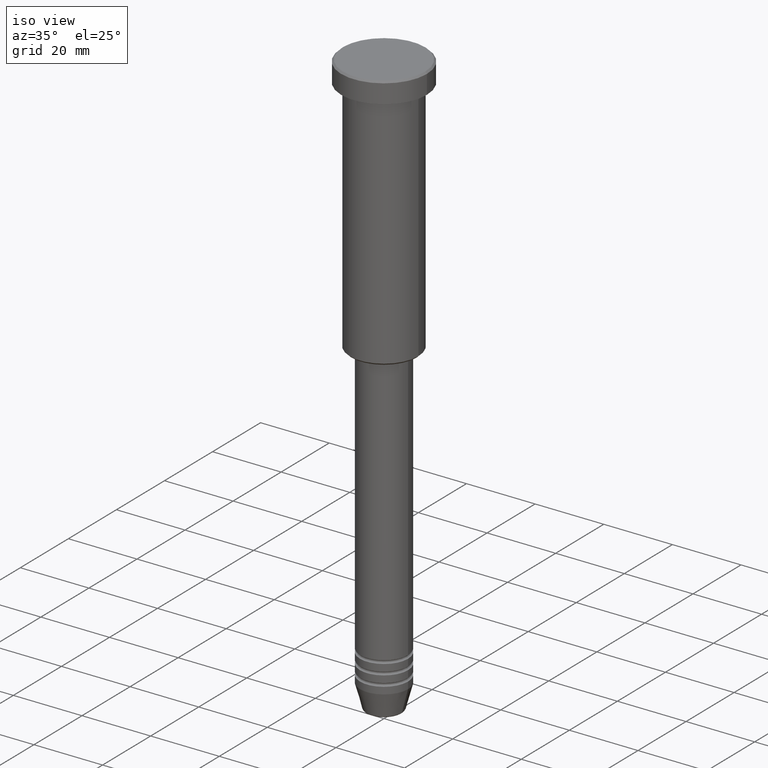
[diagram: clean part render]
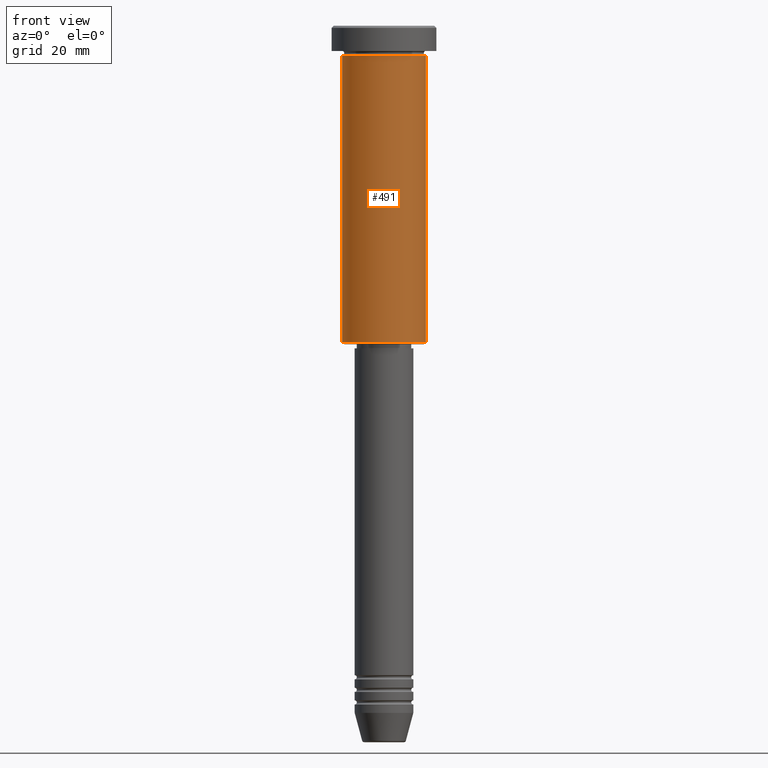
[diagram: tour spotlight — one face highlighted and labeled with its STEP entity id]
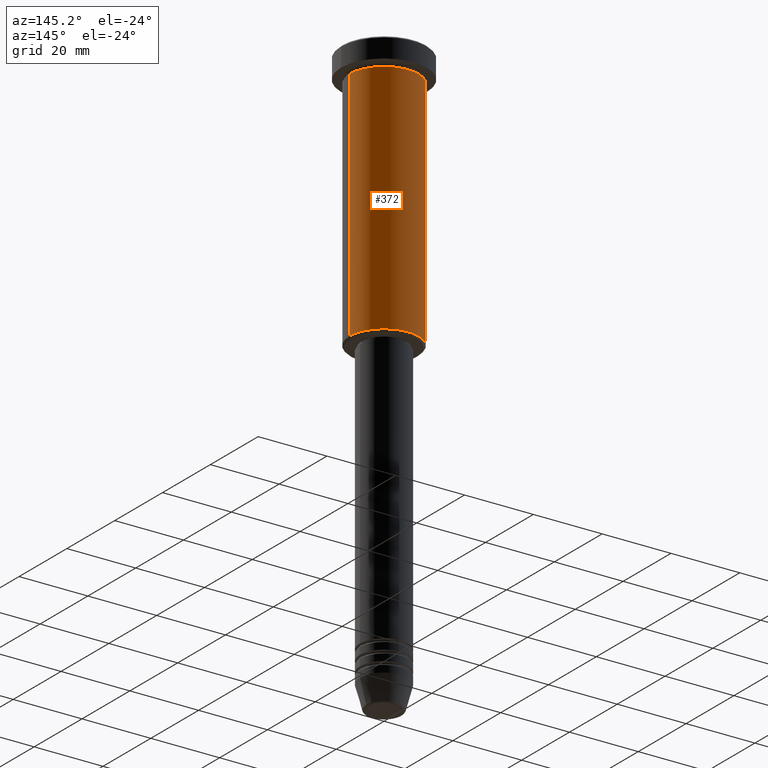
[diagram: tour spotlight — one face highlighted and labeled with its STEP entity id]
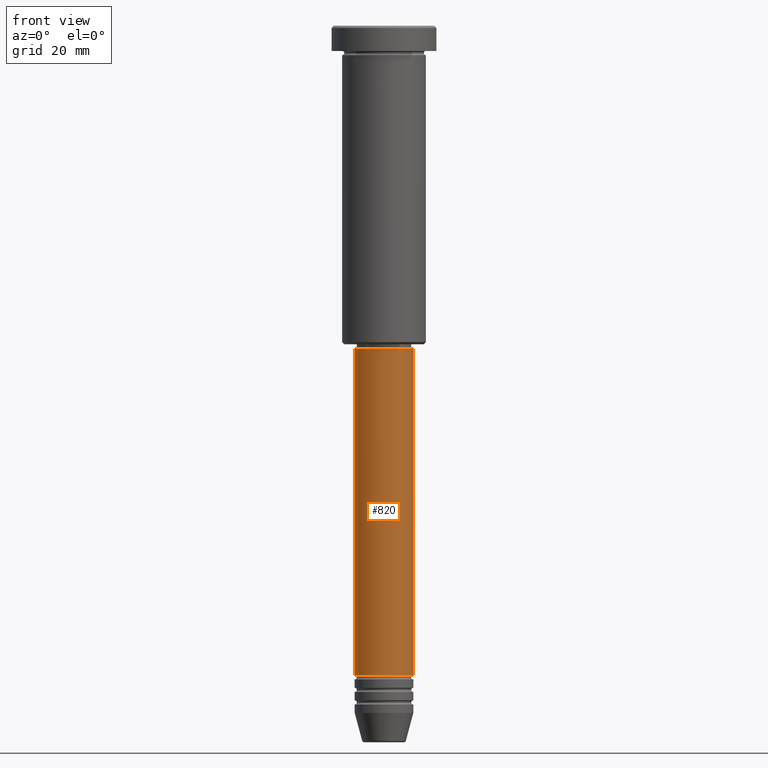
[diagram: tour spotlight — one face highlighted and labeled with its STEP entity id]
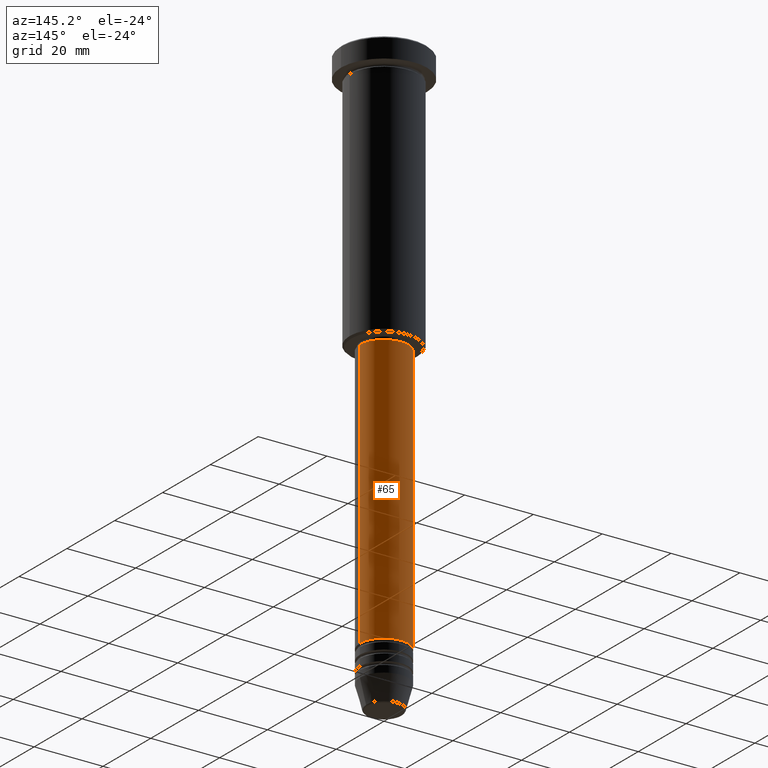
[diagram: tour spotlight — one face highlighted and labeled with its STEP entity id]
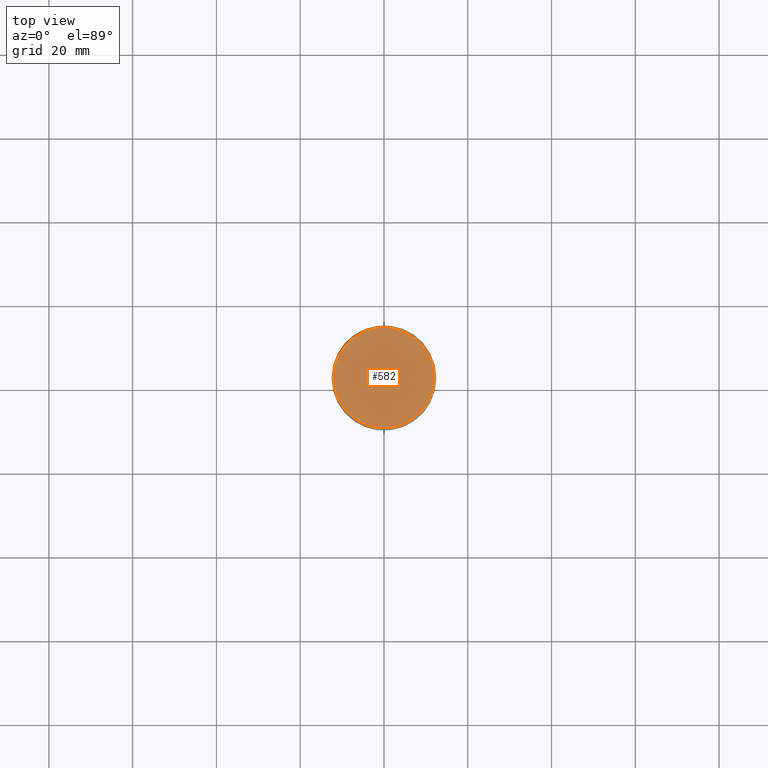
[diagram: tour spotlight — one face highlighted and labeled with its STEP entity id]
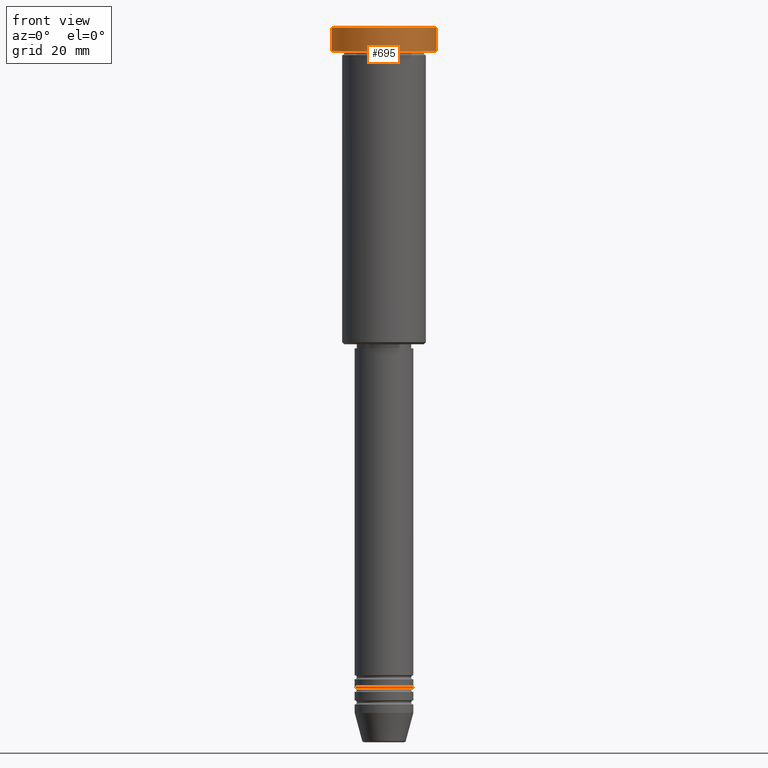
[diagram: tour spotlight — one face highlighted and labeled with its STEP entity id]
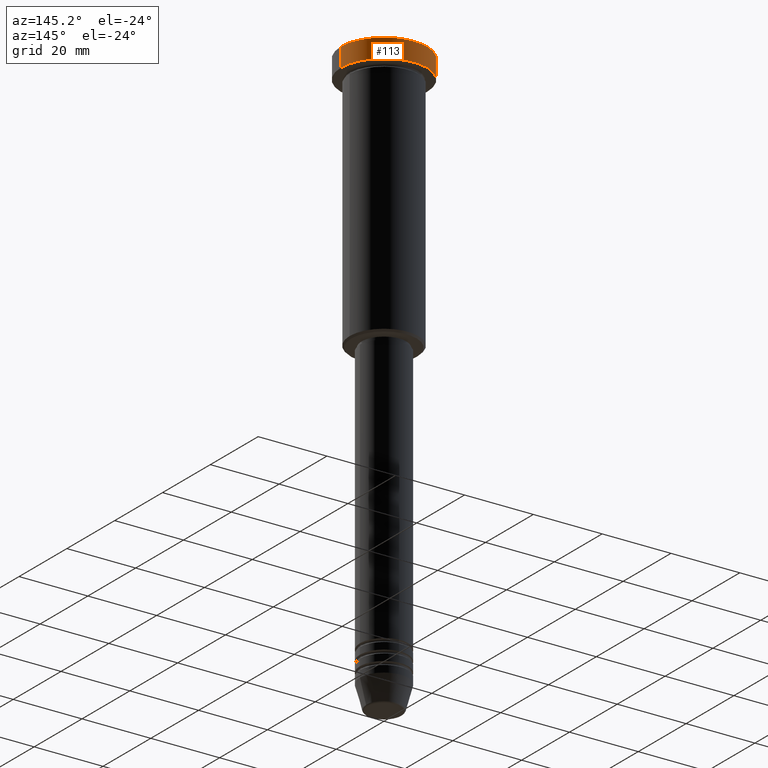
[diagram: tour spotlight — one face highlighted and labeled with its STEP entity id]
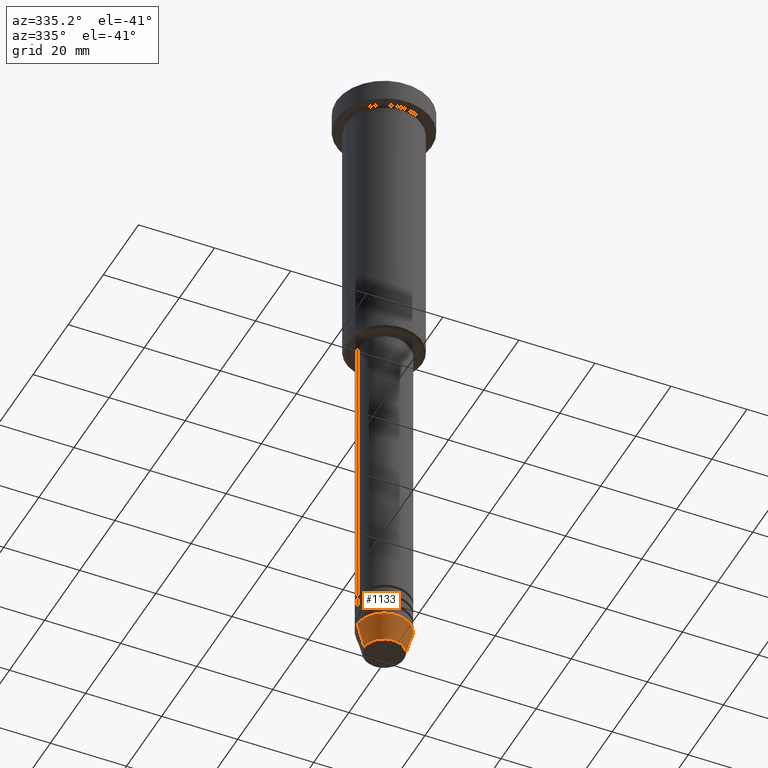
[diagram: tour spotlight — one face highlighted and labeled with its STEP entity id]
A machine part: a face-by-face anatomy tour. The part has 43 B-rep faces; the first image is the clean iso view, then the 8 largest visible faces are spotlighted one at a time (largest first), each with its STEP entity span.

Face 1 — front view, entity #491. In plain terms, the highlighted cylindrical surface (partial cylindrical patch) has radius 10 mm, axis along (-0, -0, 1).
Definition (entity closure, byte-faithful):
#4 = ORIENTED_EDGE ( 'NONE', *, *, #460, .F. ) ;
#17 = CARTESIAN_POINT ( 'NONE',  ( -10.00000000000000000, 1.224646799147353256E-15, -6.999999999999996447 ) ) ;
#54 = EDGE_CURVE ( 'NONE', #289, #724, #1138, .T. ) ;
#76 = DIRECTION ( 'NONE',  ( -0.000000000000000000, -0.000000000000000000, 1.000000000000000000 ) ) ;
#96 = VECTOR ( 'NONE', #469, 1000.000000000000000 ) ;
#116 = CARTESIAN_POINT ( 'NONE',  ( 0.000000000000000000, 0.000000000000000000, -6.999999999999996447 ) ) ;
#121 = DIRECTION ( 'NONE',  ( -0.000000000000000000, -0.000000000000000000, 1.000000000000000000 ) ) ;
#168 = LINE ( 'NONE', #550, #96 ) ;
#196 = CARTESIAN_POINT ( 'NONE',  ( 0.000000000000000000, 0.000000000000000000, -75.49999999999998579 ) ) ;
#212 = AXIS2_PLACEMENT_3D ( 'NONE', #116, #121, #794 ) ;
#257 = CIRCLE ( 'NONE', #380, 10.00000000000000000 ) ;
#272 = VECTOR ( 'NONE', #805, 1000.000000000000000 ) ;
#289 = VERTEX_POINT ( 'NONE', #17 ) ;
#292 = ORIENTED_EDGE ( 'NONE', *, *, #54, .F. ) ;
#313 = CARTESIAN_POINT ( 'NONE',  ( 10.00000000000000000, 0.000000000000000000, -6.999999999999996447 ) ) ;
#359 = CARTESIAN_POINT ( 'NONE',  ( 0.000000000000000000, 0.000000000000000000, 0.000000000000000000 ) ) ;
#360 = ORIENTED_EDGE ( 'NONE', *, *, #617, .T. ) ;
#366 = CYLINDRICAL_SURFACE ( 'NONE', #978, 10.00000000000000000 ) ;
#380 = AXIS2_PLACEMENT_3D ( 'NONE', #196, #486, #576 ) ;
#442 = VERTEX_POINT ( 'NONE', #644 ) ;
#460 = EDGE_CURVE ( 'NONE', #442, #289, #168, .T. ) ;
#469 = DIRECTION ( 'NONE',  ( -0.000000000000000000, -0.000000000000000000, 1.000000000000000000 ) ) ;
#479 = ORIENTED_EDGE ( 'NONE', *, *, #1029, .T. ) ;
#486 = DIRECTION ( 'NONE',  ( -0.000000000000000000, -0.000000000000000000, 1.000000000000000000 ) ) ;
#491 = ADVANCED_FACE ( 'NONE', ( #632 ), #366, .T. ) ;
#550 = CARTESIAN_POINT ( 'NONE',  ( -10.00000000000000000, 1.224646799147353256E-15, 0.000000000000000000 ) ) ;
#568 = DIRECTION ( 'NONE',  ( 1.000000000000000000, 0.000000000000000000, 0.000000000000000000 ) ) ;
#576 = DIRECTION ( 'NONE',  ( -1.000000000000000000, 0.000000000000000000, 0.000000000000000000 ) ) ;
#617 = EDGE_CURVE ( 'NONE', #1039, #724, #627, .T. ) ;
#627 = LINE ( 'NONE', #713, #272 ) ;
#632 = FACE_OUTER_BOUND ( 'NONE', #1102, .T. ) ;
#644 = CARTESIAN_POINT ( 'NONE',  ( -10.00000000000000000, 1.224646799147353256E-15, -75.49999999999998579 ) ) ;
#674 = CARTESIAN_POINT ( 'NONE',  ( 10.00000000000000000, 0.000000000000000000, -75.49999999999998579 ) ) ;
#713 = CARTESIAN_POINT ( 'NONE',  ( 10.00000000000000000, 0.000000000000000000, 0.000000000000000000 ) ) ;
#724 = VERTEX_POINT ( 'NONE', #313 ) ;
#794 = DIRECTION ( 'NONE',  ( 1.000000000000000000, 0.000000000000000000, 0.000000000000000000 ) ) ;
#805 = DIRECTION ( 'NONE',  ( -0.000000000000000000, -0.000000000000000000, 1.000000000000000000 ) ) ;
#978 = AXIS2_PLACEMENT_3D ( 'NONE', #359, #76, #568 ) ;
#1029 = EDGE_CURVE ( 'NONE', #442, #1039, #257, .T. ) ;
#1039 = VERTEX_POINT ( 'NONE', #674 ) ;
#1102 = EDGE_LOOP ( 'NONE', ( #4, #479, #360, #292 ) ) ;
#1138 = CIRCLE ( 'NONE', #212, 10.00000000000000000 ) ;

Face 2 — auxiliary view, entity #372. In plain terms, the highlighted cylindrical surface (partial cylindrical patch) has radius 10 mm, axis along (-0, -0, 1).
Definition (entity closure, byte-faithful):
#17 = CARTESIAN_POINT ( 'NONE',  ( -10.00000000000000000, 1.224646799147353256E-15, -6.999999999999996447 ) ) ;
#80 = CARTESIAN_POINT ( 'NONE',  ( 0.000000000000000000, 0.000000000000000000, -75.49999999999998579 ) ) ;
#96 = VECTOR ( 'NONE', #469, 1000.000000000000000 ) ;
#138 = ORIENTED_EDGE ( 'NONE', *, *, #877, .T. ) ;
#155 = FACE_OUTER_BOUND ( 'NONE', #882, .T. ) ;
#168 = LINE ( 'NONE', #550, #96 ) ;
#186 = CIRCLE ( 'NONE', #1053, 10.00000000000000000 ) ;
#272 = VECTOR ( 'NONE', #805, 1000.000000000000000 ) ;
#285 = DIRECTION ( 'NONE',  ( 1.000000000000000000, 0.000000000000000000, 0.000000000000000000 ) ) ;
#289 = VERTEX_POINT ( 'NONE', #17 ) ;
#313 = CARTESIAN_POINT ( 'NONE',  ( 10.00000000000000000, 0.000000000000000000, -6.999999999999996447 ) ) ;
#372 = ADVANCED_FACE ( 'NONE', ( #155 ), #529, .T. ) ;
#384 = CARTESIAN_POINT ( 'NONE',  ( 0.000000000000000000, 0.000000000000000000, -6.999999999999996447 ) ) ;
#429 = CARTESIAN_POINT ( 'NONE',  ( 0.000000000000000000, 0.000000000000000000, 0.000000000000000000 ) ) ;
#442 = VERTEX_POINT ( 'NONE', #644 ) ;
#445 = DIRECTION ( 'NONE',  ( -1.000000000000000000, 0.000000000000000000, 0.000000000000000000 ) ) ;
#460 = EDGE_CURVE ( 'NONE', #442, #289, #168, .T. ) ;
#469 = DIRECTION ( 'NONE',  ( -0.000000000000000000, -0.000000000000000000, 1.000000000000000000 ) ) ;
#529 = CYLINDRICAL_SURFACE ( 'NONE', #1109, 10.00000000000000000 ) ;
#550 = CARTESIAN_POINT ( 'NONE',  ( -10.00000000000000000, 1.224646799147353256E-15, 0.000000000000000000 ) ) ;
#617 = EDGE_CURVE ( 'NONE', #1039, #724, #627, .T. ) ;
#627 = LINE ( 'NONE', #713, #272 ) ;
#637 = CIRCLE ( 'NONE', #948, 10.00000000000000000 ) ;
#644 = CARTESIAN_POINT ( 'NONE',  ( -10.00000000000000000, 1.224646799147353256E-15, -75.49999999999998579 ) ) ;
#674 = CARTESIAN_POINT ( 'NONE',  ( 10.00000000000000000, 0.000000000000000000, -75.49999999999998579 ) ) ;
#713 = CARTESIAN_POINT ( 'NONE',  ( 10.00000000000000000, 0.000000000000000000, 0.000000000000000000 ) ) ;
#724 = VERTEX_POINT ( 'NONE', #313 ) ;
#764 = DIRECTION ( 'NONE',  ( -0.000000000000000000, -0.000000000000000000, 1.000000000000000000 ) ) ;
#773 = DIRECTION ( 'NONE',  ( 1.000000000000000000, 0.000000000000000000, 0.000000000000000000 ) ) ;
#779 = ORIENTED_EDGE ( 'NONE', *, *, #1056, .F. ) ;
#805 = DIRECTION ( 'NONE',  ( -0.000000000000000000, -0.000000000000000000, 1.000000000000000000 ) ) ;
#876 = DIRECTION ( 'NONE',  ( -0.000000000000000000, -0.000000000000000000, 1.000000000000000000 ) ) ;
#877 = EDGE_CURVE ( 'NONE', #1039, #442, #186, .T. ) ;
#882 = EDGE_LOOP ( 'NONE', ( #138, #1137, #779, #902 ) ) ;
#897 = DIRECTION ( 'NONE',  ( -0.000000000000000000, -0.000000000000000000, 1.000000000000000000 ) ) ;
#902 = ORIENTED_EDGE ( 'NONE', *, *, #617, .F. ) ;
#948 = AXIS2_PLACEMENT_3D ( 'NONE', #384, #764, #285 ) ;
#1039 = VERTEX_POINT ( 'NONE', #674 ) ;
#1053 = AXIS2_PLACEMENT_3D ( 'NONE', #80, #876, #445 ) ;
#1056 = EDGE_CURVE ( 'NONE', #724, #289, #637, .T. ) ;
#1109 = AXIS2_PLACEMENT_3D ( 'NONE', #429, #897, #773 ) ;
#1137 = ORIENTED_EDGE ( 'NONE', *, *, #460, .T. ) ;

Face 3 — front view, entity #820. In plain terms, the highlighted cylindrical surface (edge-blend (fillet) strip) has radius 7 mm, axis along (-0, -0, 1).
Definition (entity closure, byte-faithful):
#35 = CARTESIAN_POINT ( 'NONE',  ( 0.000000000000000000, 0.000000000000000000, -154.9999999999999716 ) ) ;
#46 = VECTOR ( 'NONE', #873, 1000.000000000000000 ) ;
#62 = CARTESIAN_POINT ( 'NONE',  ( 7.000000000000000000, 0.000000000000000000, -77.00000000000001421 ) ) ;
#86 = CARTESIAN_POINT ( 'NONE',  ( -7.000000000000000000, 8.572527594031473190E-16, 0.000000000000000000 ) ) ;
#106 = VERTEX_POINT ( 'NONE', #62 ) ;
#153 = LINE ( 'NONE', #86, #704 ) ;
#163 = CIRCLE ( 'NONE', #1001, 7.000000000000000000 ) ;
#169 = CARTESIAN_POINT ( 'NONE',  ( -7.000000000000000000, 8.572527594031473190E-16, -77.00000000000001421 ) ) ;
#217 = CIRCLE ( 'NONE', #1097, 7.000000000000000000 ) ;
#377 = AXIS2_PLACEMENT_3D ( 'NONE', #1083, #994, #541 ) ;
#395 = CARTESIAN_POINT ( 'NONE',  ( 0.000000000000000000, 0.000000000000000000, -77.00000000000001421 ) ) ;
#420 = DIRECTION ( 'NONE',  ( -0.000000000000000000, -0.000000000000000000, 1.000000000000000000 ) ) ;
#422 = DIRECTION ( 'NONE',  ( -0.000000000000000000, -0.000000000000000000, 1.000000000000000000 ) ) ;
#537 = VERTEX_POINT ( 'NONE', #837 ) ;
#541 = DIRECTION ( 'NONE',  ( 1.000000000000000000, 0.000000000000000000, 0.000000000000000000 ) ) ;
#556 = VERTEX_POINT ( 'NONE', #1061 ) ;
#590 = DIRECTION ( 'NONE',  ( 1.000000000000000000, 0.000000000000000000, 0.000000000000000000 ) ) ;
#647 = VERTEX_POINT ( 'NONE', #169 ) ;
#666 = CYLINDRICAL_SURFACE ( 'NONE', #377, 7.000000000000000000 ) ;
#672 = ORIENTED_EDGE ( 'NONE', *, *, #928, .F. ) ;
#697 = DIRECTION ( 'NONE',  ( -0.000000000000000000, -0.000000000000000000, 1.000000000000000000 ) ) ;
#704 = VECTOR ( 'NONE', #420, 1000.000000000000000 ) ;
#803 = ORIENTED_EDGE ( 'NONE', *, *, #858, .F. ) ;
#818 = ORIENTED_EDGE ( 'NONE', *, *, #1151, .T. ) ;
#820 = ADVANCED_FACE ( 'NONE', ( #1149 ), #666, .T. ) ;
#837 = CARTESIAN_POINT ( 'NONE',  ( 7.000000000000000000, 0.000000000000000000, -154.9999999999999716 ) ) ;
#858 = EDGE_CURVE ( 'NONE', #556, #647, #153, .T. ) ;
#863 = ORIENTED_EDGE ( 'NONE', *, *, #1041, .T. ) ;
#868 = LINE ( 'NONE', #949, #46 ) ;
#873 = DIRECTION ( 'NONE',  ( -0.000000000000000000, -0.000000000000000000, 1.000000000000000000 ) ) ;
#884 = DIRECTION ( 'NONE',  ( 1.000000000000000000, 0.000000000000000000, 0.000000000000000000 ) ) ;
#928 = EDGE_CURVE ( 'NONE', #647, #106, #163, .T. ) ;
#949 = CARTESIAN_POINT ( 'NONE',  ( 7.000000000000000000, 0.000000000000000000, 0.000000000000000000 ) ) ;
#994 = DIRECTION ( 'NONE',  ( -0.000000000000000000, -0.000000000000000000, 1.000000000000000000 ) ) ;
#1001 = AXIS2_PLACEMENT_3D ( 'NONE', #395, #697, #590 ) ;
#1041 = EDGE_CURVE ( 'NONE', #537, #106, #868, .T. ) ;
#1061 = CARTESIAN_POINT ( 'NONE',  ( -7.000000000000000000, 8.572527594031473190E-16, -154.9999999999999716 ) ) ;
#1083 = CARTESIAN_POINT ( 'NONE',  ( 0.000000000000000000, 0.000000000000000000, 0.000000000000000000 ) ) ;
#1097 = AXIS2_PLACEMENT_3D ( 'NONE', #35, #422, #884 ) ;
#1149 = FACE_OUTER_BOUND ( 'NONE', #1180, .T. ) ;
#1151 = EDGE_CURVE ( 'NONE', #556, #537, #217, .T. ) ;
#1180 = EDGE_LOOP ( 'NONE', ( #803, #818, #863, #672 ) ) ;

Face 4 — auxiliary view, entity #65. In plain terms, the highlighted cylindrical surface (edge-blend (fillet) strip) has radius 7 mm, axis along (-0, -0, 1).
Definition (entity closure, byte-faithful):
#23 = AXIS2_PLACEMENT_3D ( 'NONE', #1073, #702, #247 ) ;
#46 = VECTOR ( 'NONE', #873, 1000.000000000000000 ) ;
#62 = CARTESIAN_POINT ( 'NONE',  ( 7.000000000000000000, 0.000000000000000000, -77.00000000000001421 ) ) ;
#65 = ADVANCED_FACE ( 'NONE', ( #318 ), #1085, .T. ) ;
#86 = CARTESIAN_POINT ( 'NONE',  ( -7.000000000000000000, 8.572527594031473190E-16, 0.000000000000000000 ) ) ;
#106 = VERTEX_POINT ( 'NONE', #62 ) ;
#153 = LINE ( 'NONE', #86, #704 ) ;
#169 = CARTESIAN_POINT ( 'NONE',  ( -7.000000000000000000, 8.572527594031473190E-16, -77.00000000000001421 ) ) ;
#194 = ORIENTED_EDGE ( 'NONE', *, *, #1041, .F. ) ;
#201 = AXIS2_PLACEMENT_3D ( 'NONE', #330, #989, #796 ) ;
#206 = ORIENTED_EDGE ( 'NONE', *, *, #858, .T. ) ;
#218 = DIRECTION ( 'NONE',  ( -0.000000000000000000, -0.000000000000000000, 1.000000000000000000 ) ) ;
#247 = DIRECTION ( 'NONE',  ( 1.000000000000000000, 0.000000000000000000, 0.000000000000000000 ) ) ;
#318 = FACE_OUTER_BOUND ( 'NONE', #975, .T. ) ;
#330 = CARTESIAN_POINT ( 'NONE',  ( 0.000000000000000000, 0.000000000000000000, -154.9999999999999716 ) ) ;
#392 = AXIS2_PLACEMENT_3D ( 'NONE', #955, #218, #1054 ) ;
#420 = DIRECTION ( 'NONE',  ( -0.000000000000000000, -0.000000000000000000, 1.000000000000000000 ) ) ;
#463 = CIRCLE ( 'NONE', #201, 7.000000000000000000 ) ;
#537 = VERTEX_POINT ( 'NONE', #837 ) ;
#556 = VERTEX_POINT ( 'NONE', #1061 ) ;
#619 = ORIENTED_EDGE ( 'NONE', *, *, #976, .F. ) ;
#647 = VERTEX_POINT ( 'NONE', #169 ) ;
#655 = CIRCLE ( 'NONE', #392, 7.000000000000000000 ) ;
#702 = DIRECTION ( 'NONE',  ( -0.000000000000000000, -0.000000000000000000, 1.000000000000000000 ) ) ;
#704 = VECTOR ( 'NONE', #420, 1000.000000000000000 ) ;
#732 = ORIENTED_EDGE ( 'NONE', *, *, #1183, .T. ) ;
#796 = DIRECTION ( 'NONE',  ( 1.000000000000000000, 0.000000000000000000, 0.000000000000000000 ) ) ;
#837 = CARTESIAN_POINT ( 'NONE',  ( 7.000000000000000000, 0.000000000000000000, -154.9999999999999716 ) ) ;
#858 = EDGE_CURVE ( 'NONE', #556, #647, #153, .T. ) ;
#868 = LINE ( 'NONE', #949, #46 ) ;
#873 = DIRECTION ( 'NONE',  ( -0.000000000000000000, -0.000000000000000000, 1.000000000000000000 ) ) ;
#949 = CARTESIAN_POINT ( 'NONE',  ( 7.000000000000000000, 0.000000000000000000, 0.000000000000000000 ) ) ;
#955 = CARTESIAN_POINT ( 'NONE',  ( 0.000000000000000000, 0.000000000000000000, -77.00000000000001421 ) ) ;
#975 = EDGE_LOOP ( 'NONE', ( #732, #206, #619, #194 ) ) ;
#976 = EDGE_CURVE ( 'NONE', #106, #647, #655, .T. ) ;
#989 = DIRECTION ( 'NONE',  ( -0.000000000000000000, -0.000000000000000000, 1.000000000000000000 ) ) ;
#1041 = EDGE_CURVE ( 'NONE', #537, #106, #868, .T. ) ;
#1054 = DIRECTION ( 'NONE',  ( 1.000000000000000000, 0.000000000000000000, 0.000000000000000000 ) ) ;
#1061 = CARTESIAN_POINT ( 'NONE',  ( -7.000000000000000000, 8.572527594031473190E-16, -154.9999999999999716 ) ) ;
#1073 = CARTESIAN_POINT ( 'NONE',  ( 0.000000000000000000, 0.000000000000000000, 0.000000000000000000 ) ) ;
#1085 = CYLINDRICAL_SURFACE ( 'NONE', #23, 7.000000000000000000 ) ;
#1183 = EDGE_CURVE ( 'NONE', #537, #556, #463, .T. ) ;

Face 5 — top view, entity #582. In plain terms, the highlighted planar face has unit normal (0, -0, 1).
Definition (entity closure, byte-faithful):
#100 = CARTESIAN_POINT ( 'NONE',  ( -12.00000000000001066, 0.000000000000000000, 0.000000000000000000 ) ) ;
#118 = DIRECTION ( 'NONE',  ( -0.000000000000000000, -0.000000000000000000, 1.000000000000000000 ) ) ;
#143 = CARTESIAN_POINT ( 'NONE',  ( 0.000000000000000000, 0.000000000000000000, 0.000000000000000000 ) ) ;
#162 = AXIS2_PLACEMENT_3D ( 'NONE', #1116, #472, #857 ) ;
#224 = EDGE_LOOP ( 'NONE', ( #931, #483 ) ) ;
#307 = CIRCLE ( 'NONE', #459, 12.00000000000001066 ) ;
#317 = EDGE_CURVE ( 'NONE', #493, #488, #307, .T. ) ;
#412 = CIRCLE ( 'NONE', #909, 12.00000000000001066 ) ;
#459 = AXIS2_PLACEMENT_3D ( 'NONE', #143, #904, #512 ) ;
#472 = DIRECTION ( 'NONE',  ( 0.000000000000000000, -0.000000000000000000, 1.000000000000000000 ) ) ;
#483 = ORIENTED_EDGE ( 'NONE', *, *, #317, .T. ) ;
#488 = VERTEX_POINT ( 'NONE', #100 ) ;
#493 = VERTEX_POINT ( 'NONE', #1002 ) ;
#503 = CARTESIAN_POINT ( 'NONE',  ( 0.000000000000000000, 0.000000000000000000, 0.000000000000000000 ) ) ;
#506 = DIRECTION ( 'NONE',  ( 1.000000000000000000, 0.000000000000000000, 0.000000000000000000 ) ) ;
#512 = DIRECTION ( 'NONE',  ( 1.000000000000000000, 0.000000000000000000, 0.000000000000000000 ) ) ;
#522 = FACE_OUTER_BOUND ( 'NONE', #224, .T. ) ;
#582 = ADVANCED_FACE ( 'NONE', ( #522 ), #700, .T. ) ;
#700 = PLANE ( 'NONE',  #162 ) ;
#857 = DIRECTION ( 'NONE',  ( 1.000000000000000000, 0.000000000000000000, 0.000000000000000000 ) ) ;
#904 = DIRECTION ( 'NONE',  ( -0.000000000000000000, -0.000000000000000000, 1.000000000000000000 ) ) ;
#909 = AXIS2_PLACEMENT_3D ( 'NONE', #503, #118, #506 ) ;
#931 = ORIENTED_EDGE ( 'NONE', *, *, #1018, .T. ) ;
#1002 = CARTESIAN_POINT ( 'NONE',  ( 12.00000000000001066, 1.500192328955508326E-15, 0.000000000000000000 ) ) ;
#1018 = EDGE_CURVE ( 'NONE', #488, #493, #412, .T. ) ;
#1116 = CARTESIAN_POINT ( 'NONE',  ( 0.000000000000000000, 0.000000000000000000, 0.000000000000000000 ) ) ;

Face 6 — front view, entity #695. In plain terms, the highlighted cylindrical surface (partial cylindrical patch) has radius 12.5 mm, axis along (-0, -0, 1).
Definition (entity closure, byte-faithful):
#16 = DIRECTION ( 'NONE',  ( 1.000000000000000000, 0.000000000000000000, 0.000000000000000000 ) ) ;
#103 = VERTEX_POINT ( 'NONE', #716 ) ;
#167 = VERTEX_POINT ( 'NONE', #899 ) ;
#187 = EDGE_CURVE ( 'NONE', #875, #167, #865, .T. ) ;
#188 = CARTESIAN_POINT ( 'NONE',  ( 0.000000000000000000, 0.000000000000000000, 0.000000000000000000 ) ) ;
#193 = DIRECTION ( 'NONE',  ( -0.000000000000000000, -0.000000000000000000, 1.000000000000000000 ) ) ;
#269 = AXIS2_PLACEMENT_3D ( 'NONE', #709, #1094, #1080 ) ;
#296 = ORIENTED_EDGE ( 'NONE', *, *, #187, .T. ) ;
#341 = ORIENTED_EDGE ( 'NONE', *, *, #1047, .T. ) ;
#344 = EDGE_CURVE ( 'NONE', #875, #348, #792, .T. ) ;
#348 = VERTEX_POINT ( 'NONE', #423 ) ;
#357 = CARTESIAN_POINT ( 'NONE',  ( 12.50000000000000000, 0.000000000000000000, 0.000000000000000000 ) ) ;
#375 = VECTOR ( 'NONE', #1150, 1000.000000000000000 ) ;
#423 = CARTESIAN_POINT ( 'NONE',  ( -12.50000000000000000, 1.530808498934191521E-15, -0.4999999999999917843 ) ) ;
#447 = FACE_OUTER_BOUND ( 'NONE', #917, .T. ) ;
#478 = DIRECTION ( 'NONE',  ( 1.000000000000000000, 0.000000000000000000, 0.000000000000000000 ) ) ;
#662 = LINE ( 'NONE', #357, #787 ) ;
#669 = CARTESIAN_POINT ( 'NONE',  ( 0.000000000000000000, 0.000000000000000000, -0.4999999999999917843 ) ) ;
#695 = ADVANCED_FACE ( 'NONE', ( #447 ), #735, .T. ) ;
#709 = CARTESIAN_POINT ( 'NONE',  ( 0.000000000000000000, 0.000000000000000000, -5.999999999999996447 ) ) ;
#715 = EDGE_CURVE ( 'NONE', #167, #103, #662, .T. ) ;
#716 = CARTESIAN_POINT ( 'NONE',  ( 12.50000000000000000, 0.000000000000000000, -0.4999999999999917843 ) ) ;
#731 = DIRECTION ( 'NONE',  ( -0.000000000000000000, -0.000000000000000000, 1.000000000000000000 ) ) ;
#735 = CYLINDRICAL_SURFACE ( 'NONE', #965, 12.50000000000000000 ) ;
#743 = ORIENTED_EDGE ( 'NONE', *, *, #344, .F. ) ;
#787 = VECTOR ( 'NONE', #731, 1000.000000000000000 ) ;
#792 = LINE ( 'NONE', #1089, #375 ) ;
#808 = CARTESIAN_POINT ( 'NONE',  ( -12.50000000000000000, 1.530808498934191521E-15, -5.999999999999996447 ) ) ;
#814 = AXIS2_PLACEMENT_3D ( 'NONE', #669, #855, #16 ) ;
#855 = DIRECTION ( 'NONE',  ( 0.000000000000000000, 0.000000000000000000, -1.000000000000000000 ) ) ;
#865 = CIRCLE ( 'NONE', #269, 12.50000000000000000 ) ;
#875 = VERTEX_POINT ( 'NONE', #808 ) ;
#899 = CARTESIAN_POINT ( 'NONE',  ( 12.50000000000000000, 0.000000000000000000, -5.999999999999996447 ) ) ;
#917 = EDGE_LOOP ( 'NONE', ( #743, #296, #1165, #341 ) ) ;
#965 = AXIS2_PLACEMENT_3D ( 'NONE', #188, #193, #478 ) ;
#1047 = EDGE_CURVE ( 'NONE', #103, #348, #1071, .T. ) ;
#1071 = CIRCLE ( 'NONE', #814, 12.50000000000000000 ) ;
#1080 = DIRECTION ( 'NONE',  ( 1.000000000000000000, 0.000000000000000000, 0.000000000000000000 ) ) ;
#1089 = CARTESIAN_POINT ( 'NONE',  ( -12.50000000000000000, 1.530808498934191521E-15, 0.000000000000000000 ) ) ;
#1094 = DIRECTION ( 'NONE',  ( -0.000000000000000000, -0.000000000000000000, 1.000000000000000000 ) ) ;
#1150 = DIRECTION ( 'NONE',  ( -0.000000000000000000, -0.000000000000000000, 1.000000000000000000 ) ) ;
#1165 = ORIENTED_EDGE ( 'NONE', *, *, #715, .T. ) ;

Face 7 — auxiliary view, entity #113. In plain terms, the highlighted cylindrical surface (partial cylindrical patch) has radius 12.5 mm, axis along (-0, -0, 1).
Definition (entity closure, byte-faithful):
#8 = AXIS2_PLACEMENT_3D ( 'NONE', #916, #823, #1096 ) ;
#90 = EDGE_LOOP ( 'NONE', ( #907, #812, #890, #435 ) ) ;
#103 = VERTEX_POINT ( 'NONE', #716 ) ;
#113 = ADVANCED_FACE ( 'NONE', ( #531 ), #1168, .T. ) ;
#165 = CARTESIAN_POINT ( 'NONE',  ( 0.000000000000000000, 0.000000000000000000, 0.000000000000000000 ) ) ;
#167 = VERTEX_POINT ( 'NONE', #899 ) ;
#254 = CARTESIAN_POINT ( 'NONE',  ( 0.000000000000000000, 0.000000000000000000, -0.4999999999999917843 ) ) ;
#309 = EDGE_CURVE ( 'NONE', #348, #103, #1178, .T. ) ;
#331 = DIRECTION ( 'NONE',  ( 1.000000000000000000, 0.000000000000000000, 0.000000000000000000 ) ) ;
#344 = EDGE_CURVE ( 'NONE', #875, #348, #792, .T. ) ;
#348 = VERTEX_POINT ( 'NONE', #423 ) ;
#357 = CARTESIAN_POINT ( 'NONE',  ( 12.50000000000000000, 0.000000000000000000, 0.000000000000000000 ) ) ;
#375 = VECTOR ( 'NONE', #1150, 1000.000000000000000 ) ;
#423 = CARTESIAN_POINT ( 'NONE',  ( -12.50000000000000000, 1.530808498934191521E-15, -0.4999999999999917843 ) ) ;
#435 = ORIENTED_EDGE ( 'NONE', *, *, #715, .F. ) ;
#523 = DIRECTION ( 'NONE',  ( 1.000000000000000000, 0.000000000000000000, 0.000000000000000000 ) ) ;
#530 = EDGE_CURVE ( 'NONE', #167, #875, #563, .T. ) ;
#531 = FACE_OUTER_BOUND ( 'NONE', #90, .T. ) ;
#546 = DIRECTION ( 'NONE',  ( -0.000000000000000000, -0.000000000000000000, 1.000000000000000000 ) ) ;
#563 = CIRCLE ( 'NONE', #8, 12.50000000000000000 ) ;
#662 = LINE ( 'NONE', #357, #787 ) ;
#684 = AXIS2_PLACEMENT_3D ( 'NONE', #254, #1079, #331 ) ;
#715 = EDGE_CURVE ( 'NONE', #167, #103, #662, .T. ) ;
#716 = CARTESIAN_POINT ( 'NONE',  ( 12.50000000000000000, 0.000000000000000000, -0.4999999999999917843 ) ) ;
#731 = DIRECTION ( 'NONE',  ( -0.000000000000000000, -0.000000000000000000, 1.000000000000000000 ) ) ;
#787 = VECTOR ( 'NONE', #731, 1000.000000000000000 ) ;
#792 = LINE ( 'NONE', #1089, #375 ) ;
#808 = CARTESIAN_POINT ( 'NONE',  ( -12.50000000000000000, 1.530808498934191521E-15, -5.999999999999996447 ) ) ;
#812 = ORIENTED_EDGE ( 'NONE', *, *, #344, .T. ) ;
#823 = DIRECTION ( 'NONE',  ( -0.000000000000000000, -0.000000000000000000, 1.000000000000000000 ) ) ;
#875 = VERTEX_POINT ( 'NONE', #808 ) ;
#890 = ORIENTED_EDGE ( 'NONE', *, *, #309, .T. ) ;
#899 = CARTESIAN_POINT ( 'NONE',  ( 12.50000000000000000, 0.000000000000000000, -5.999999999999996447 ) ) ;
#907 = ORIENTED_EDGE ( 'NONE', *, *, #530, .T. ) ;
#916 = CARTESIAN_POINT ( 'NONE',  ( 0.000000000000000000, 0.000000000000000000, -5.999999999999996447 ) ) ;
#1050 = AXIS2_PLACEMENT_3D ( 'NONE', #165, #546, #523 ) ;
#1079 = DIRECTION ( 'NONE',  ( 0.000000000000000000, 0.000000000000000000, -1.000000000000000000 ) ) ;
#1089 = CARTESIAN_POINT ( 'NONE',  ( -12.50000000000000000, 1.530808498934191521E-15, 0.000000000000000000 ) ) ;
#1096 = DIRECTION ( 'NONE',  ( 1.000000000000000000, 0.000000000000000000, 0.000000000000000000 ) ) ;
#1150 = DIRECTION ( 'NONE',  ( -0.000000000000000000, -0.000000000000000000, 1.000000000000000000 ) ) ;
#1168 = CYLINDRICAL_SURFACE ( 'NONE', #1050, 12.50000000000000000 ) ;
#1178 = CIRCLE ( 'NONE', #684, 12.50000000000000000 ) ;

Face 8 — auxiliary view, entity #1133. In plain terms, the highlighted conical surface has half-angle 15 deg.
Definition (entity closure, byte-faithful):
#25 = CIRCLE ( 'NONE', #745, 5.223655072137196598 ) ;
#26 = CONICAL_SURFACE ( 'NONE', #124, 7.000000000000000000, 0.2617993877991500740 ) ;
#39 = DIRECTION ( 'NONE',  ( -0.2588190451025213501, 3.169619151431772337E-17, 0.9659258262890680902 ) ) ;
#43 = EDGE_CURVE ( 'NONE', #112, #801, #1049, .T. ) ;
#78 = EDGE_CURVE ( 'NONE', #801, #567, #95, .T. ) ;
#83 = ORIENTED_EDGE ( 'NONE', *, *, #78, .F. ) ;
#84 = EDGE_CURVE ( 'NONE', #838, #567, #144, .T. ) ;
#95 = CIRCLE ( 'NONE', #120, 7.000000000000000000 ) ;
#112 = VERTEX_POINT ( 'NONE', #1164 ) ;
#120 = AXIS2_PLACEMENT_3D ( 'NONE', #446, #1154, #723 ) ;
#124 = AXIS2_PLACEMENT_3D ( 'NONE', #312, #615, #1067 ) ;
#144 = LINE ( 'NONE', #800, #807 ) ;
#244 = ORIENTED_EDGE ( 'NONE', *, *, #43, .F. ) ;
#312 = CARTESIAN_POINT ( 'NONE',  ( 0.000000000000000000, 0.000000000000000000, -164.0000000000000000 ) ) ;
#319 = CARTESIAN_POINT ( 'NONE',  ( 0.000000000000000000, 0.000000000000000000, -170.6294095225512422 ) ) ;
#321 = CARTESIAN_POINT ( 'NONE',  ( 7.000000000000000000, 0.000000000000000000, -164.0000000000000000 ) ) ;
#398 = CARTESIAN_POINT ( 'NONE',  ( -7.000000000000000000, 8.572527594031473190E-16, -164.0000000000000000 ) ) ;
#446 = CARTESIAN_POINT ( 'NONE',  ( 0.000000000000000000, 0.000000000000000000, -164.0000000000000000 ) ) ;
#510 = CARTESIAN_POINT ( 'NONE',  ( -7.000000000000000000, 8.572527594031473190E-16, -164.0000000000000000 ) ) ;
#527 = DIRECTION ( 'NONE',  ( 1.000000000000000000, 0.000000000000000000, 0.000000000000000000 ) ) ;
#532 = ORIENTED_EDGE ( 'NONE', *, *, #604, .T. ) ;
#567 = VERTEX_POINT ( 'NONE', #321 ) ;
#604 = EDGE_CURVE ( 'NONE', #112, #838, #25, .T. ) ;
#615 = DIRECTION ( 'NONE',  ( -0.000000000000000000, -0.000000000000000000, 1.000000000000000000 ) ) ;
#723 = DIRECTION ( 'NONE',  ( 1.000000000000000000, 0.000000000000000000, 0.000000000000000000 ) ) ;
#745 = AXIS2_PLACEMENT_3D ( 'NONE', #319, #790, #527 ) ;
#790 = DIRECTION ( 'NONE',  ( -0.000000000000000000, -0.000000000000000000, 1.000000000000000000 ) ) ;
#800 = CARTESIAN_POINT ( 'NONE',  ( 7.000000000000000000, 0.000000000000000000, -164.0000000000000000 ) ) ;
#801 = VERTEX_POINT ( 'NONE', #398 ) ;
#807 = VECTOR ( 'NONE', #985, 1000.000000000000000 ) ;
#838 = VERTEX_POINT ( 'NONE', #1088 ) ;
#924 = EDGE_LOOP ( 'NONE', ( #244, #532, #993, #83 ) ) ;
#985 = DIRECTION ( 'NONE',  ( 0.2588190451025213501, 0.000000000000000000, 0.9659258262890680902 ) ) ;
#993 = ORIENTED_EDGE ( 'NONE', *, *, #84, .T. ) ;
#1049 = LINE ( 'NONE', #510, #1139 ) ;
#1059 = FACE_OUTER_BOUND ( 'NONE', #924, .T. ) ;
#1067 = DIRECTION ( 'NONE',  ( 1.000000000000000000, 0.000000000000000000, 0.000000000000000000 ) ) ;
#1088 = CARTESIAN_POINT ( 'NONE',  ( 5.223655072137196598, 0.000000000000000000, -170.6294095225512422 ) ) ;
#1133 = ADVANCED_FACE ( 'NONE', ( #1059 ), #26, .T. ) ;
#1139 = VECTOR ( 'NONE', #39, 1000.000000000000000 ) ;
#1154 = DIRECTION ( 'NONE',  ( -0.000000000000000000, -0.000000000000000000, 1.000000000000000000 ) ) ;
#1164 = CARTESIAN_POINT ( 'NONE',  ( -5.223655072137196598, 7.484830028987062146E-16, -170.6294095225512422 ) ) ;